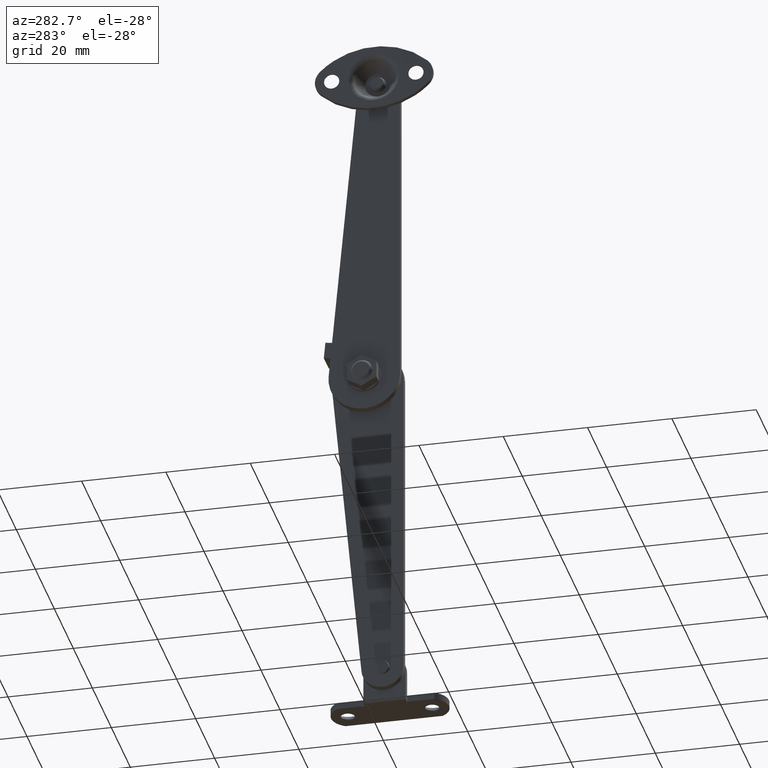
[diagram: clean part render]
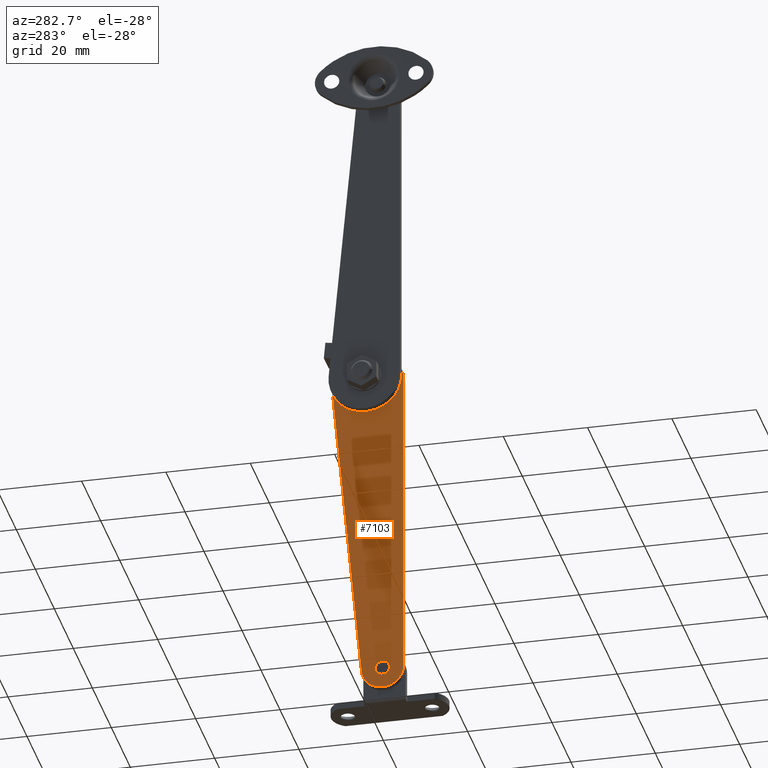
[diagram: same view with one face highlighted and labeled with its STEP entity id]
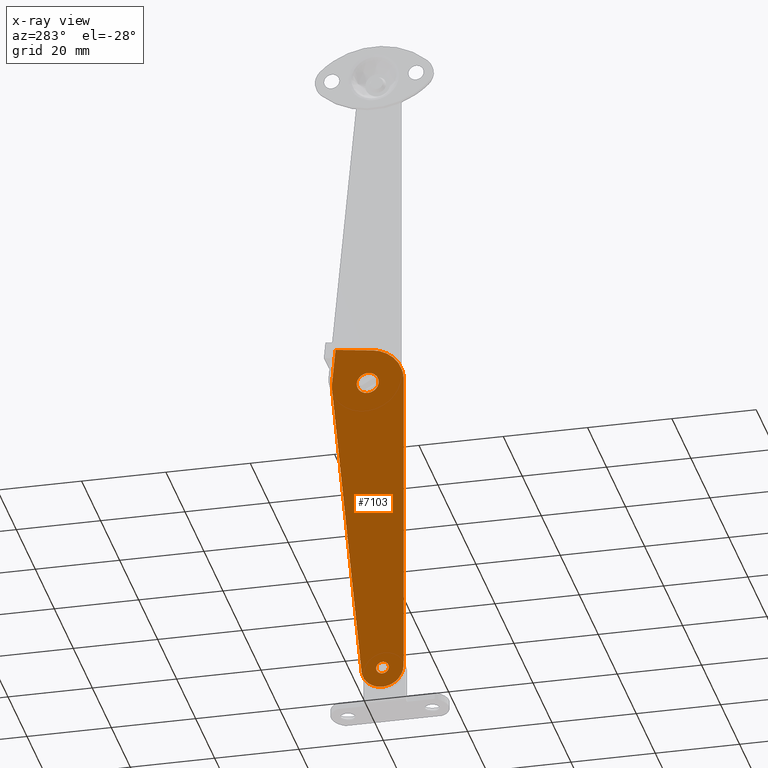
[diagram: x-ray of the same camera — body ghosted, the highlighted face saturated]
A machine part, auxiliary view. The second image highlights one B-rep face of the part: STEP entity #7103.
The next image is the same camera in x-ray: the body ghosted, the highlighted face saturated — about 0% of this face is hidden behind the body in this view.
In plain terms, the highlighted face is a freeform B-spline surface patch.
Its self-contained STEP definition (entity closure, byte-faithful):
#6652=CARTESIAN_POINT('',(3.599991000000189,-2.581824766095675,-0.306889030717961));
#6653=VERTEX_POINT('',#6652);
#6654=CARTESIAN_POINT('',(3.599991000000190,0.0,2.600000000000000));
#6655=VERTEX_POINT('',#6654);
#6656=CARTESIAN_POINT('',(3.599991000000190,-2.581824766095676,-0.306889030717961));
#6657=CARTESIAN_POINT('',(3.599991000000190,-2.600000000000000,-0.153982731923245));
#6658=CARTESIAN_POINT('',(3.599991000000190,-2.600000000000000,0.0));
#6659=CARTESIAN_POINT('',(3.599991000000190,-2.600000000000001,2.600000000000001));
#6660=CARTESIAN_POINT('',(3.599991000000190,0.0,2.600000000000000));
#6668=(BOUNDED_CURVE()B_SPLINE_CURVE(2,(#6656,#6657,#6658,#6659,#6660),.UNSPECIFIED.,.F.,.U.)B_SPLINE_CURVE_WITH_KNOTS((3,2,3),(0.229562470817380,0.250000000000000,0.500000000000000),.UNSPECIFIED.)CURVE()GEOMETRIC_REPRESENTATION_ITEM()RATIONAL_B_SPLINE_CURVE((0.956026748899178,0.976055945172434,1.0,0.707106781186548,1.0))REPRESENTATION_ITEM(''));
#6669=EDGE_CURVE('',#6653,#6655,#6668,.T.);
#6671=CARTESIAN_POINT('',(3.599991000000189,2.595150475889329,0.158726202913659));
#6672=VERTEX_POINT('',#6671);
#6673=CARTESIAN_POINT('',(3.599991000000190,0.0,2.600000000000000));
#6674=CARTESIAN_POINT('',(3.599991000000190,2.445835773722483,2.599999999999999));
#6675=CARTESIAN_POINT('',(3.599991000000189,2.595150475889329,0.158726202913659));
#6683=(BOUNDED_CURVE()B_SPLINE_CURVE(2,(#6673,#6674,#6675),.UNSPECIFIED.,.F.,.U.)B_SPLINE_CURVE_WITH_KNOTS((3,3),(0.500000000000000,0.739332962225609),.UNSPECIFIED.)CURVE()GEOMETRIC_REPRESENTATION_ITEM()RATIONAL_B_SPLINE_CURVE((1.0,0.719603993302332,0.976072041638141))REPRESENTATION_ITEM(''));
#6684=EDGE_CURVE('',#6655,#6672,#6683,.T.);
#6751=CARTESIAN_POINT('',(3.599991000000190,0.0,-2.600000000000000));
#6752=VERTEX_POINT('',#6751);
#6753=CARTESIAN_POINT('',(3.599991000000190,0.0,-2.600000000000000));
#6754=CARTESIAN_POINT('',(3.599991000000190,-2.309253730345034,-2.600000000000001));
#6755=CARTESIAN_POINT('',(3.599991000000190,-2.581824766095675,-0.306889030717961));
#6763=(BOUNDED_CURVE()B_SPLINE_CURVE(2,(#6753,#6754,#6755),.UNSPECIFIED.,.F.,.U.)B_SPLINE_CURVE_WITH_KNOTS((3,3),(0.0,0.229562470817380),.UNSPECIFIED.)CURVE()GEOMETRIC_REPRESENTATION_ITEM()RATIONAL_B_SPLINE_CURVE((1.0,0.731050836014113,0.956026748899177))REPRESENTATION_ITEM(''));
#6764=EDGE_CURVE('',#6752,#6653,#6763,.T.);
#6798=CARTESIAN_POINT('',(3.599991000000189,2.595150475889329,0.158726202913659));
#6799=CARTESIAN_POINT('',(3.599991000000190,2.600000000000000,0.079437184699707));
#6800=CARTESIAN_POINT('',(3.599991000000190,2.600000000000000,0.0));
#6801=CARTESIAN_POINT('',(3.599991000000190,2.600000000000001,-2.600000000000001));
#6802=CARTESIAN_POINT('',(3.599991000000190,0.0,-2.600000000000000));
#6810=(BOUNDED_CURVE()B_SPLINE_CURVE(2,(#6798,#6799,#6800,#6801,#6802),.UNSPECIFIED.,.F.,.U.)B_SPLINE_CURVE_WITH_KNOTS((3,2,3),(0.739332962225608,0.750000000000000,1.0),.UNSPECIFIED.)CURVE()GEOMETRIC_REPRESENTATION_ITEM()RATIONAL_B_SPLINE_CURVE((0.976072041638139,0.987502787884215,1.0,0.707106781186548,1.0))REPRESENTATION_ITEM(''));
#6811=EDGE_CURVE('',#6672,#6752,#6810,.T.);
#6838=CARTESIAN_POINT('',(3.599991000000190,-4.989517289518010,-75.177051352216395));
#6839=VERTEX_POINT('',#6838);
#6840=CARTESIAN_POINT('',(3.599991000000190,-3.500003000000000,-73.500000000000000));
#6841=VERTEX_POINT('',#6840);
#6842=CARTESIAN_POINT('',(3.599991000000190,-4.989517289518010,-75.177051352216395));
#6843=CARTESIAN_POINT('',(3.599991000000189,-5.000003000000000,-75.088836179711564));
#6844=CARTESIAN_POINT('',(3.599991000000190,-5.000003000000000,-75.0));
#6845=CARTESIAN_POINT('',(3.599991000000190,-5.000003000000000,-73.500000000000000));
#6846=CARTESIAN_POINT('',(3.599991000000190,-3.500003000000000,-73.500000000000000));
#6854=(BOUNDED_CURVE()B_SPLINE_CURVE(2,(#6842,#6843,#6844,#6845,#6846),.UNSPECIFIED.,.F.,.U.)B_SPLINE_CURVE_WITH_KNOTS((3,2,3),(0.229562473463165,0.250000000000000,0.500000000000000),.UNSPECIFIED.)CURVE()GEOMETRIC_REPRESENTATION_ITEM()RATIONAL_B_SPLINE_CURVE((0.956026754085023,0.976055948272164,1.0,0.707106781186548,1.0))REPRESENTATION_ITEM(''));
#6855=EDGE_CURVE('',#6839,#6841,#6854,.T.);
#6857=CARTESIAN_POINT('',(3.599991000000189,-2.002800802477172,-74.908427188899680));
#6858=VERTEX_POINT('',#6857);
#6859=CARTESIAN_POINT('',(3.599991000000190,-3.500003000000000,-73.500000000000000));
#6860=CARTESIAN_POINT('',(3.599991000000189,-2.088943903036947,-73.500000000000014));
#6861=CARTESIAN_POINT('',(3.599991000000189,-2.002800802477172,-74.908427188899680));
#6869=(BOUNDED_CURVE()B_SPLINE_CURVE(2,(#6859,#6860,#6861),.UNSPECIFIED.,.F.,.U.)B_SPLINE_CURVE_WITH_KNOTS((3,3),(0.500000000000000,0.739332961827536),.UNSPECIFIED.)CURVE()GEOMETRIC_REPRESENTATION_ITEM()RATIONAL_B_SPLINE_CURVE((1.0,0.719603993768703,0.976072040784995))REPRESENTATION_ITEM(''));
#6870=EDGE_CURVE('',#6841,#6858,#6869,.T.);
#6937=CARTESIAN_POINT('',(3.599991000000190,-3.500003000000000,-76.500000000000000));
#6938=VERTEX_POINT('',#6937);
#6939=CARTESIAN_POINT('',(3.599991000000190,-3.500003000000000,-76.500000000000000));
#6940=CARTESIAN_POINT('',(3.599991000000189,-4.832264788510439,-76.500000000000000));
#6941=CARTESIAN_POINT('',(3.599991000000189,-4.989517289518010,-75.177051352216395));
#6949=(BOUNDED_CURVE()B_SPLINE_CURVE(2,(#6939,#6940,#6941),.UNSPECIFIED.,.F.,.U.)B_SPLINE_CURVE_WITH_KNOTS((3,3),(0.0,0.229562473463165),.UNSPECIFIED.)CURVE()GEOMETRIC_REPRESENTATION_ITEM()RATIONAL_B_SPLINE_CURVE((1.0,0.731050832914384,0.956026754085023))REPRESENTATION_ITEM(''));
#6950=EDGE_CURVE('',#6938,#6839,#6949,.T.);
#6984=CARTESIAN_POINT('',(3.599991000000190,-2.002800802477172,-74.908427188899680));
#6985=CARTESIAN_POINT('',(3.599991000000190,-2.000003000000000,-74.954170853249039));
#6986=CARTESIAN_POINT('',(3.599991000000190,-2.000003000000000,-75.0));
#6987=CARTESIAN_POINT('',(3.599991000000190,-2.000003000000000,-76.500000000000000));
#6988=CARTESIAN_POINT('',(3.599991000000190,-3.500003000000000,-76.500000000000000));
#6996=(BOUNDED_CURVE()B_SPLINE_CURVE(2,(#6984,#6985,#6986,#6987,#6988),.UNSPECIFIED.,.F.,.U.)B_SPLINE_CURVE_WITH_KNOTS((3,2,3),(0.739332961827537,0.750000000000000,1.0),.UNSPECIFIED.)CURVE()GEOMETRIC_REPRESENTATION_ITEM()RATIONAL_B_SPLINE_CURVE((0.976072040784997,0.987502787417846,1.0,0.707106781186548,1.0))REPRESENTATION_ITEM(''));
#6997=EDGE_CURVE('',#6858,#6938,#6996,.T.);
#7002=CARTESIAN_POINT('',(3.599991000000100,-9.349142942526720,14.025386196707970));
#7003=CARTESIAN_POINT('',(3.599991000000100,9.349150088843190,14.025386196707970));
#7004=CARTESIAN_POINT('',(3.599991000000100,-9.349142942526720,-84.466883195965465));
#7005=CARTESIAN_POINT('',(3.599991000000100,9.349150088843190,-84.466883195965465));
#7006=B_SPLINE_SURFACE_WITH_KNOTS('',1,1,((#7002,#7004),(#7003,#7005)),.UNSPECIFIED.,.F.,.F.,.U.,(2,2),(2,2),(0.0,18.698293031369911),(0.0,98.492269392673435),.UNSPECIFIED.);
#7007=CARTESIAN_POINT('',(3.599991000000080,-8.499954011509320,-74.977866710410609));
#7008=VERTEX_POINT('',#7007);
#7009=CARTESIAN_POINT('',(3.599991000000080,1.478266527776086,-75.465652777093595));
#7010=VERTEX_POINT('',#7009);
#7011=CARTESIAN_POINT('',(3.599991000000080,-8.499954011509312,-74.977866710410609));
#7012=CARTESIAN_POINT('',(3.599991000000080,-8.521125357407668,-79.760512864836997));
#7013=CARTESIAN_POINT('',(3.599991000000080,-3.744136843202415,-79.994036310100597));
#7014=CARTESIAN_POINT('',(3.599991000000080,1.032851671002837,-80.227559755364211));
#7015=CARTESIAN_POINT('',(3.599991000000080,1.478266527776091,-75.465652777093595));
#7023=(BOUNDED_CURVE()B_SPLINE_CURVE(2,(#7011,#7012,#7013,#7014,#7015),.UNSPECIFIED.,.F.,.U.)B_SPLINE_CURVE_WITH_KNOTS((3,2,3),(0.0,0.500000000000000,1.0),.UNSPECIFIED.)CURVE()GEOMETRIC_REPRESENTATION_ITEM()RATIONAL_B_SPLINE_CURVE((1.0,0.722635770003003,1.0,0.722635770003003,1.0))REPRESENTATION_ITEM(''));
#7024=EDGE_CURVE('',#7008,#7010,#7023,.T.);
#7025=ORIENTED_EDGE('',*,*,#7024,.F.);
#7026=CARTESIAN_POINT('',(3.599991000000080,-8.499993005675012,0.010904287041643));
#7027=VERTEX_POINT('',#7026);
#7028=CARTESIAN_POINT('',(3.599991000000080,-8.499993005675012,0.010904287041643));
#7029=CARTESIAN_POINT('',(3.599991000000080,-8.499954011509320,-74.977866710410609));
#7030=QUASI_UNIFORM_CURVE('',1,(#7028,#7029),.UNSPECIFIED.,.F.,.U.);
#7031=EDGE_CURVE('',#7027,#7008,#7030,.T.);
#7032=ORIENTED_EDGE('',*,*,#7031,.F.);
#7033=CARTESIAN_POINT('',(3.599991000000080,-1.083766832788526,8.430636021495001));
#7034=VERTEX_POINT('',#7033);
#7035=CARTESIAN_POINT('',(3.599991000000080,-1.083766832788525,8.430636021494999));
#7036=CARTESIAN_POINT('',(3.599991000000080,-8.490432091761075,7.478510458684190));
#7037=CARTESIAN_POINT('',(3.599991000000080,-8.499993005675009,0.010904287041642));
#7045=(BOUNDED_CURVE()B_SPLINE_CURVE(2,(#7035,#7036,#7037),.UNSPECIFIED.,.F.,.U.)CURVE()GEOMETRIC_REPRESENTATION_ITEM()QUASI_UNIFORM_CURVE()RATIONAL_B_SPLINE_CURVE((1.0,0.751255759554554,1.0))REPRESENTATION_ITEM(''));
#7046=EDGE_CURVE('',#7034,#7027,#7045,.T.);
#7047=ORIENTED_EDGE('',*,*,#7046,.F.);
#7048=CARTESIAN_POINT('',(3.599991000000080,7.643582127443380,9.552535426061388));
#7049=VERTEX_POINT('',#7048);
#7050=CARTESIAN_POINT('',(3.599991000000080,7.643582127443380,9.552535426061388));
#7051=CARTESIAN_POINT('',(3.599991000000080,-1.083766832788526,8.430636021495001));
#7052=QUASI_UNIFORM_CURVE('',1,(#7050,#7051),.UNSPECIFIED.,.F.,.U.);
#7053=EDGE_CURVE('',#7049,#7034,#7052,.T.);
#7054=ORIENTED_EDGE('',*,*,#7053,.F.);
#7055=CARTESIAN_POINT('',(3.599991000000090,8.016328615115949,5.567545008724150));
#7056=VERTEX_POINT('',#7055);
#7057=CARTESIAN_POINT('',(3.599991000000090,8.016328615115949,5.567545008724150));
#7058=CARTESIAN_POINT('',(3.599991000000080,7.643582127443380,9.552535426061388));
#7059=QUASI_UNIFORM_CURVE('',1,(#7057,#7058),.UNSPECIFIED.,.F.,.U.);
#7060=EDGE_CURVE('',#7056,#7049,#7059,.T.);
#7061=ORIENTED_EDGE('',*,*,#7060,.F.);
#7062=CARTESIAN_POINT('',(3.599991000000080,8.463057776861380,0.791614215073322));
#7063=VERTEX_POINT('',#7062);
#7064=CARTESIAN_POINT('',(3.599991000000080,8.463057776861380,0.791614215073322));
#7065=CARTESIAN_POINT('',(3.599991000000090,8.016328615115949,5.567545008724150));
#7066=QUASI_UNIFORM_CURVE('',1,(#7064,#7065),.UNSPECIFIED.,.F.,.U.);
#7067=EDGE_CURVE('',#7063,#7056,#7066,.T.);
#7068=ORIENTED_EDGE('',*,*,#7067,.F.);
#7069=CARTESIAN_POINT('',(3.599991000000080,8.463058197219521,-0.791609721059231));
#7070=VERTEX_POINT('',#7069);
#7071=CARTESIAN_POINT('',(3.599991000000080,8.463058197219521,-0.791609721059234));
#7072=CARTESIAN_POINT('',(3.599991000000080,8.537103268184140,0.000002266666636));
#7073=CARTESIAN_POINT('',(3.599991000000080,8.463057776861378,0.791614215073320));
#7081=(BOUNDED_CURVE()B_SPLINE_CURVE(2,(#7071,#7072,#7073),.UNSPECIFIED.,.F.,.U.)CURVE()GEOMETRIC_REPRESENTATION_ITEM()QUASI_UNIFORM_CURVE()RATIONAL_B_SPLINE_CURVE((1.0,0.995653880828323,1.0))REPRESENTATION_ITEM(''));
#7082=EDGE_CURVE('',#7070,#7063,#7081,.T.);
#7083=ORIENTED_EDGE('',*,*,#7082,.F.);
#7084=CARTESIAN_POINT('',(3.599991000000080,1.478266527776086,-75.465652777093595));
#7085=CARTESIAN_POINT('',(3.599991000000080,8.463058197219521,-0.791609721059231));
#7086=QUASI_UNIFORM_CURVE('',1,(#7084,#7085),.UNSPECIFIED.,.F.,.U.);
#7087=EDGE_CURVE('',#7010,#7070,#7086,.T.);
#7088=ORIENTED_EDGE('',*,*,#7087,.F.);
#7089=EDGE_LOOP('',(#7025,#7032,#7047,#7054,#7061,#7068,#7083,#7088));
#7090=FACE_OUTER_BOUND('',#7089,.T.);
#7091=ORIENTED_EDGE('',*,*,#6870,.F.);
#7092=ORIENTED_EDGE('',*,*,#6855,.F.);
#7093=ORIENTED_EDGE('',*,*,#6950,.F.);
#7094=ORIENTED_EDGE('',*,*,#6997,.F.);
#7095=EDGE_LOOP('',(#7091,#7092,#7093,#7094));
#7096=FACE_BOUND('',#7095,.T.);
#7097=ORIENTED_EDGE('',*,*,#6684,.F.);
#7098=ORIENTED_EDGE('',*,*,#6669,.F.);
#7099=ORIENTED_EDGE('',*,*,#6764,.F.);
#7100=ORIENTED_EDGE('',*,*,#6811,.F.);
#7101=EDGE_LOOP('',(#7097,#7098,#7099,#7100));
#7102=FACE_BOUND('',#7101,.T.);
#7103=ADVANCED_FACE('',(#7090,#7096,#7102),#7006,.T.);